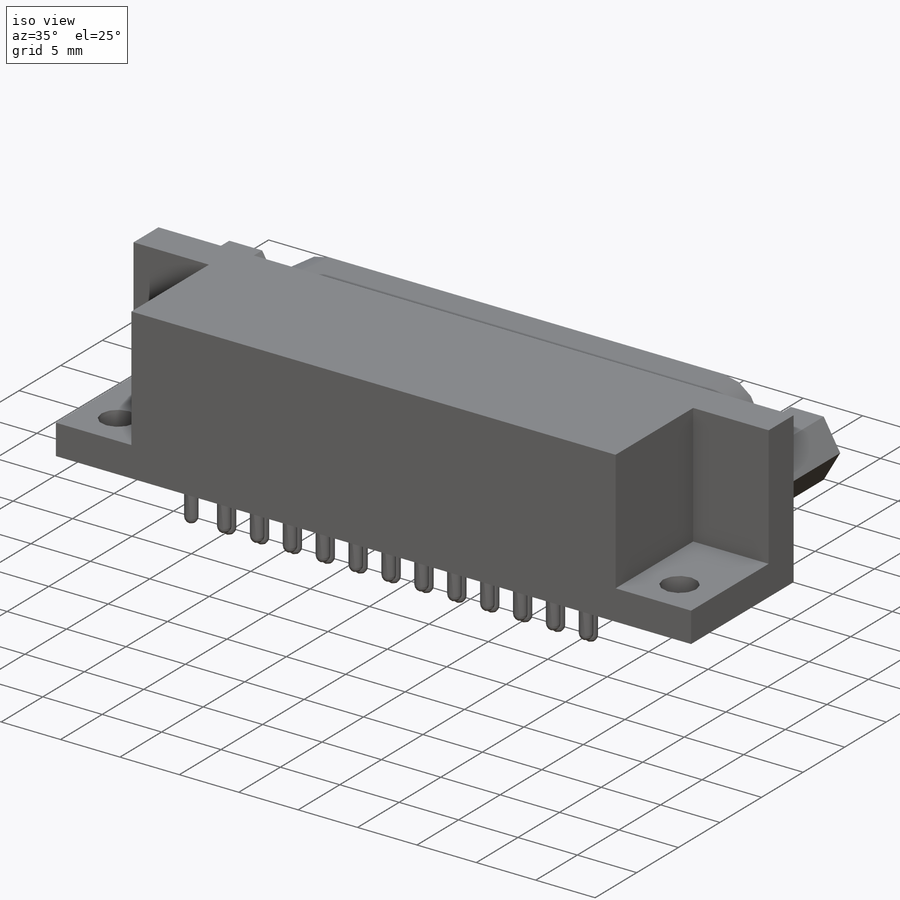
[diagram: iso view]
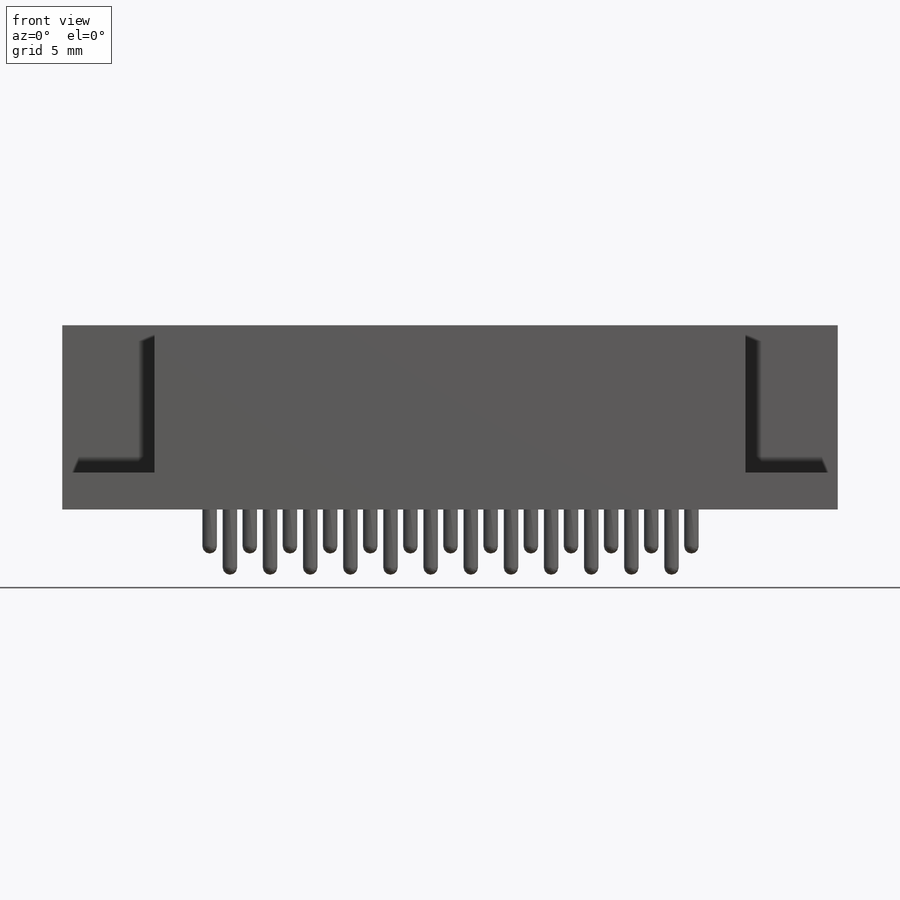
[diagram: front view]
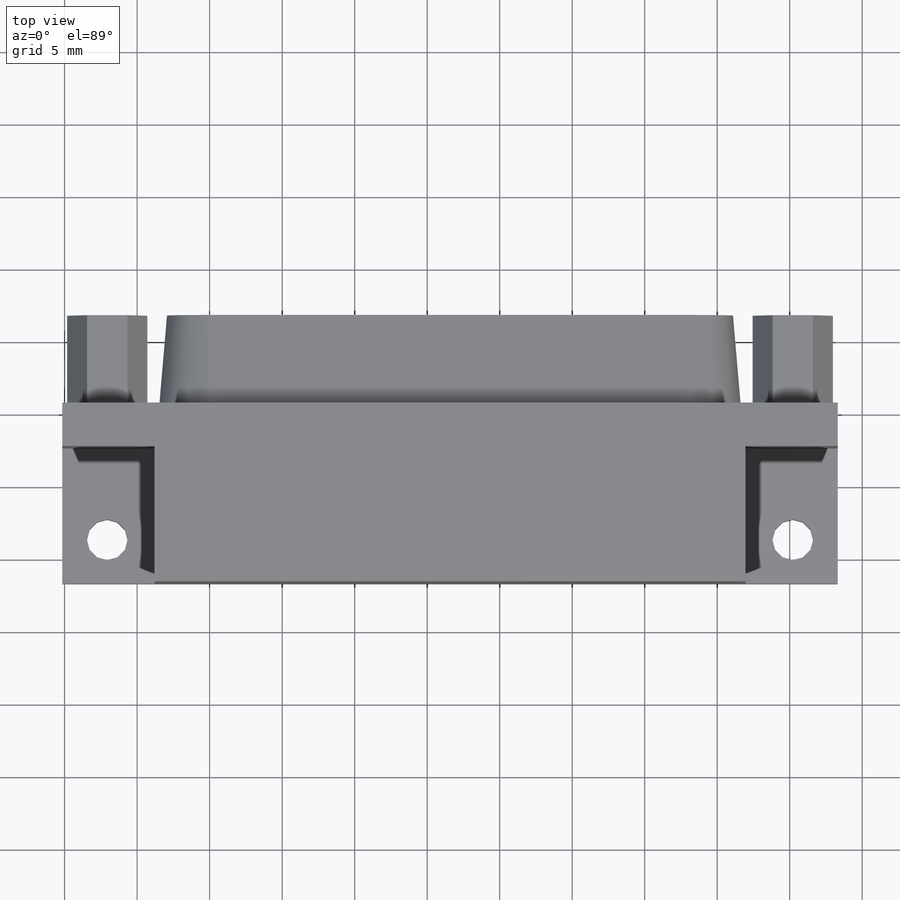
[diagram: top view]
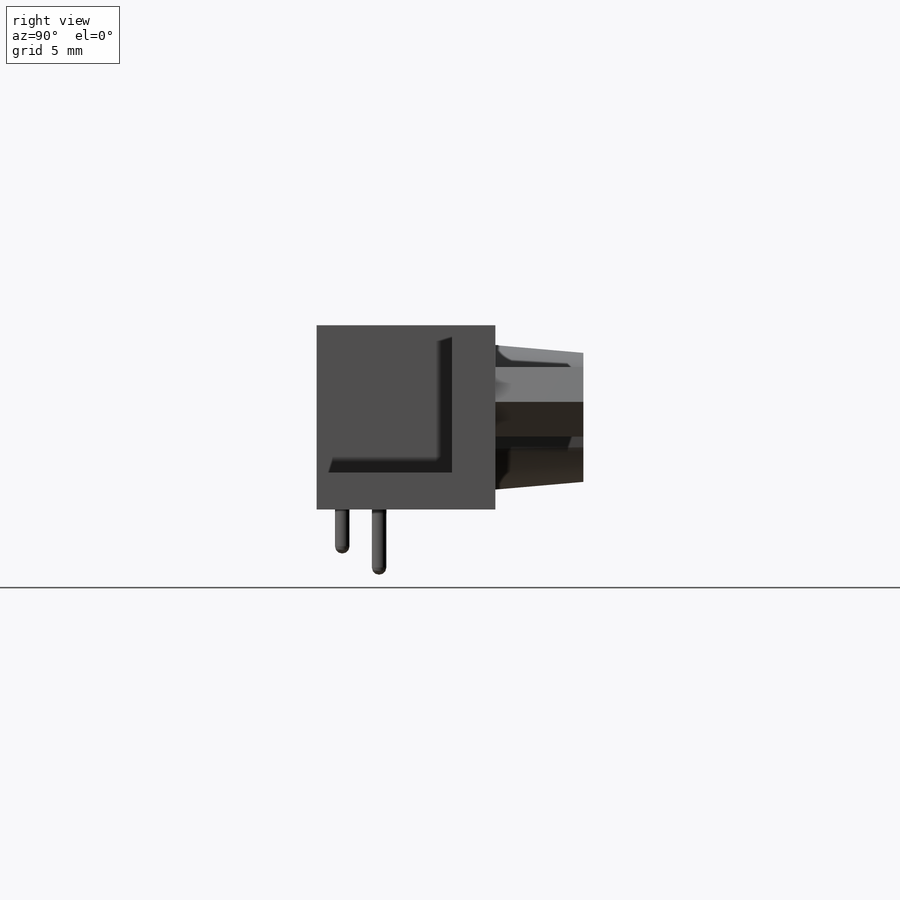
[diagram: right view]
SOLIDWORKS PART (.sldprt)
format: sldprt  version: not decoded by parser v0  size: 420,352 bytes
history: native  units: mm
features: sketch x10, extrude x7, plane x4, dome x4, pattern_linear x4, cut_extrude x3, material x1, mirror x1 (+8 scaffold rows collapsed)
feature tree (42):
  scaffold x8  (default folders/planes/origin — collapsed)
  material  "Material <not specified>"
  plane  "x/y"
  plane  "x/z"
  plane  "y/z"
  sketch  "Sketch1"  dims[D1=53.47mm D2=12.33mm D3=1.77mm D4=10.16mm]
  extrude  "Base-Extrude"  Depth=12.7mm
  sketch  "Sketch2"  dims[c1.D5=3.48mm c1.D1=2.54mm c1.D2=2.286mm c1.D3=~28.605577mm c2.D3=100.95deg c2.D4=~27.948255mm c2.D1=1.37mm c2.D2=1.37mm c3.D4=33.24mm]
  extrude  "Boss-Extrude1"  Depth=6.07mm
  sketch  "Sketch13"  dims[D1=0.4mm]
  cut_extrude  "Cut-Extrude5"  [1 undecoded]
  sketch  "Sketch6"  dims[D1=1.0mm D2=2.54mm D3=11.557mm]
  extrude  "Boss-Extrude2"  Depth=2.54mm
  dome  "Dome3"
  pattern_linear  "LPattern1"  Count1=13 Count2=1 Spacing1=2.7686mm Spacing2=50mm
  sketch  "Sketch7"  dims[D1=0.7112mm D2=11.557mm D3=2.54mm]
  extrude  "Boss-Extrude3"  Depth=4mm
  dome  "Dome4"
  pattern_linear  "LPattern4"  Count1=12 Count2=1 Spacing1=2.7686mm Spacing2=50mm
  sketch  "Sketch14"  dims[D1=9.47mm]
  extrude  "Boss-Extrude5"  Depth=4mm
  dome  "Dome1"
  pattern_linear  "LPattern5"  Count1=13 Count2=1 Spacing1=2.77mm Spacing2=50mm
  sketch  "Sketch15"  dims[D1=2.54mm]
  extrude  "Boss-Extrude6"  Depth=4mm
  dome  "Dome2"
  pattern_linear  "LPattern6"  Count1=12 Count2=1 Spacing1=2.77mm Spacing2=50mm
  plane  "Plane1"
  sketch  "Sketch12"  dims[D1=2.77mm D2=2.88mm D3=0.33mm]
  extrude  "Boss-Extrude4"  Depth=6.07mm
  sketch  "Sketch9"  dims[D1=10.16mm D2=~6.35508mm]
  cut_extrude  "Cut-Extrude3"  Depth=9.33mm
  sketch  "Sketch11"  dims[D1=2.8mm D2=3.04mm D3=3.1mm]
  cut_extrude  "Cut-Extrude4"  [1 undecoded]
  mirror  "Mirror1"
decode coverage: 22 of 29 modeling features carry decoded parameters
note: ~ marks probable driven/reference dimensions
note: 2 parameter values undecoded
note: suppression state not decoded; provenance and decode notes live in map.json
